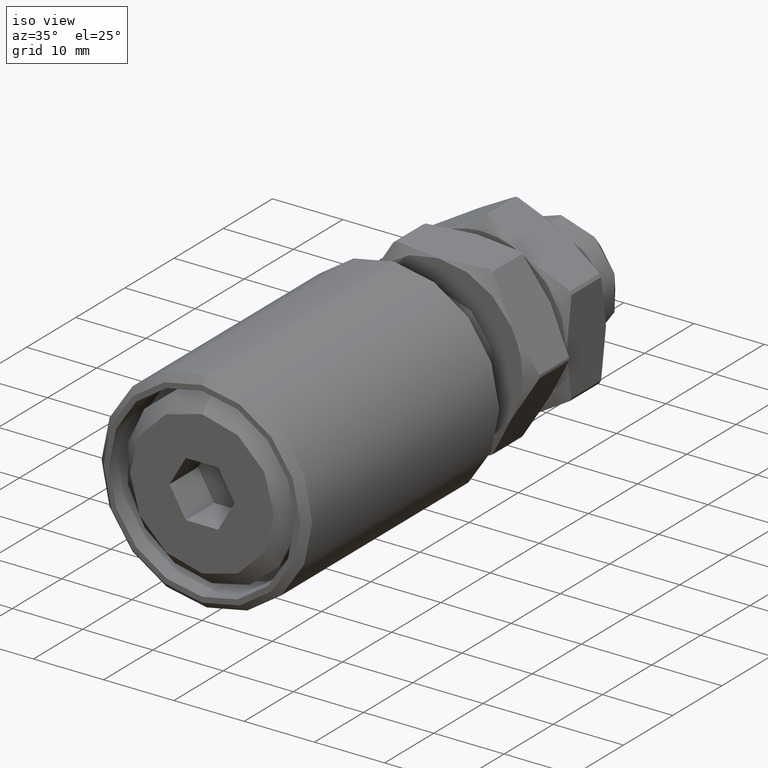
[diagram: clean part render]
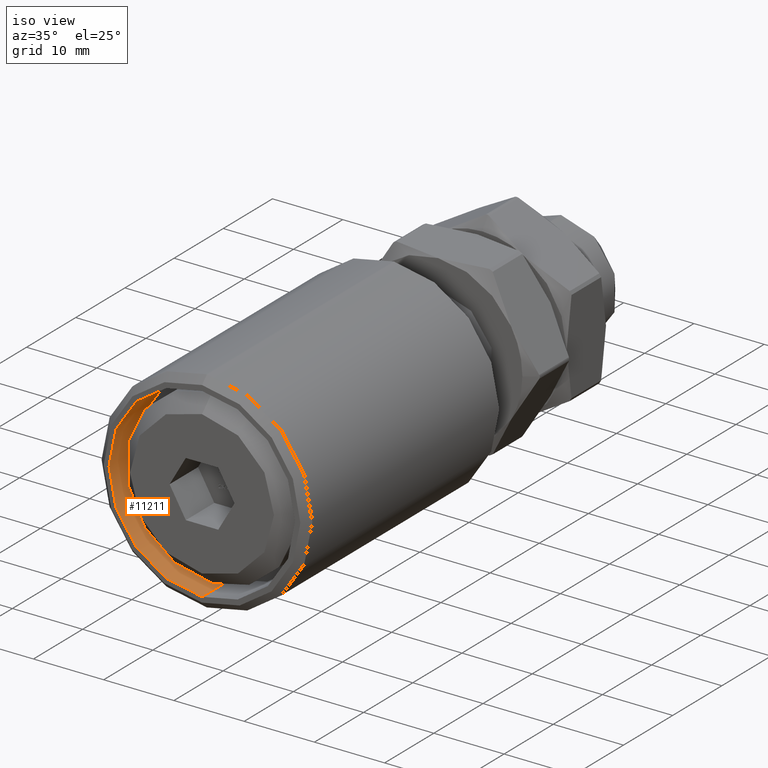
[diagram: same view with one face highlighted and labeled with its STEP entity id]
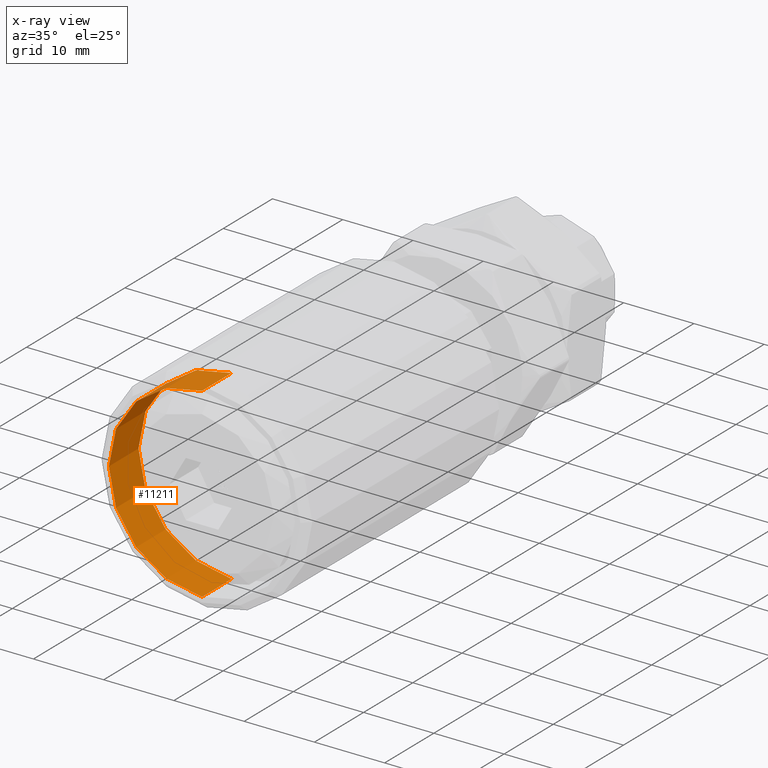
[diagram: x-ray of the same camera — body ghosted, the highlighted face saturated]
A machine part, iso view. The second image highlights one B-rep face of the part: STEP entity #11211.
The next image is the same camera in x-ray: the body ghosted, the highlighted face saturated — about 0% of this face is hidden behind the body in this view.
In plain terms, the highlighted cylindrical surface (partial cylindrical patch) has radius 13.25 mm, axis along (-0, -1, -0).
Its self-contained STEP definition (entity closure, byte-faithful):
#199 = VECTOR ( 'NONE', #1695, 1000.000000000000000 ) ;
#1168 = AXIS2_PLACEMENT_3D ( 'NONE', #3135, #6791, #10564 ) ;
#1228 = CARTESIAN_POINT ( 'NONE',  ( 0.000000000000000000, 0.000000000000000000, -13.25000000000000000 ) ) ;
#1642 = ORIENTED_EDGE ( 'NONE', *, *, #10018, .F. ) ;
#1695 = DIRECTION ( 'NONE',  ( -0.000000000000000000, -1.000000000000000000, -0.000000000000000000 ) ) ;
#2409 = VERTEX_POINT ( 'NONE', #14158 ) ;
#2655 = VERTEX_POINT ( 'NONE', #11034 ) ;
#2872 = AXIS2_PLACEMENT_3D ( 'NONE', #11153, #12856, #6435 ) ;
#3135 = CARTESIAN_POINT ( 'NONE',  ( 0.000000000000000000, 0.000000000000000000, 0.000000000000000000 ) ) ;
#4306 = EDGE_CURVE ( 'NONE', #2655, #2409, #13696, .T. ) ;
#5141 = CARTESIAN_POINT ( 'NONE',  ( 0.000000000000000000, 5.999999999999999112, -13.25000000000000000 ) ) ;
#5521 = ORIENTED_EDGE ( 'NONE', *, *, #4306, .T. ) ;
#6186 = DIRECTION ( 'NONE',  ( -0.000000000000000000, -1.000000000000000000, -0.000000000000000000 ) ) ;
#6219 = CIRCLE ( 'NONE', #2872, 13.25000000000000000 ) ;
#6435 = DIRECTION ( 'NONE',  ( 0.000000000000000000, 0.000000000000000000, -1.000000000000000000 ) ) ;
#6741 = CARTESIAN_POINT ( 'NONE',  ( 0.000000000000000000, 0.000000000000000000, 0.000000000000000000 ) ) ;
#6791 = DIRECTION ( 'NONE',  ( -0.000000000000000000, -1.000000000000000000, -0.000000000000000000 ) ) ;
#9128 = CARTESIAN_POINT ( 'NONE',  ( 1.622657008870242882E-15, 0.000000000000000000, 13.25000000000000000 ) ) ;
#9180 = ORIENTED_EDGE ( 'NONE', *, *, #14504, .F. ) ;
#9380 = CIRCLE ( 'NONE', #13649, 13.25000000000000000 ) ;
#10018 = EDGE_CURVE ( 'NONE', #12418, #14745, #13798, .T. ) ;
#10053 = CYLINDRICAL_SURFACE ( 'NONE', #1168, 13.25000000000000000 ) ;
#10280 = VECTOR ( 'NONE', #6186, 1000.000000000000000 ) ;
#10564 = DIRECTION ( 'NONE',  ( 0.000000000000000000, 0.000000000000000000, -1.000000000000000000 ) ) ;
#11034 = CARTESIAN_POINT ( 'NONE',  ( 1.622657008870242882E-15, 5.999999999999999112, 13.25000000000000000 ) ) ;
#11153 = CARTESIAN_POINT ( 'NONE',  ( 0.000000000000000000, 5.999999999999999112, 0.000000000000000000 ) ) ;
#11211 = ADVANCED_FACE ( 'NONE', ( #13405 ), #10053, .F. ) ;
#12390 = EDGE_LOOP ( 'NONE', ( #9180, #5521, #14838, #1642 ) ) ;
#12418 = VERTEX_POINT ( 'NONE', #5141 ) ;
#12477 = EDGE_CURVE ( 'NONE', #2409, #14745, #9380, .T. ) ;
#12856 = DIRECTION ( 'NONE',  ( -0.000000000000000000, -1.000000000000000000, -0.000000000000000000 ) ) ;
#13405 = FACE_OUTER_BOUND ( 'NONE', #12390, .T. ) ;
#13649 = AXIS2_PLACEMENT_3D ( 'NONE', #6741, #15495, #15388 ) ;
#13696 = LINE ( 'NONE', #9128, #199 ) ;
#13798 = LINE ( 'NONE', #1228, #10280 ) ;
#14158 = CARTESIAN_POINT ( 'NONE',  ( 1.622657008870242882E-15, 0.000000000000000000, 13.25000000000000000 ) ) ;
#14212 = CARTESIAN_POINT ( 'NONE',  ( 0.000000000000000000, 0.000000000000000000, -13.25000000000000000 ) ) ;
#14504 = EDGE_CURVE ( 'NONE', #2655, #12418, #6219, .T. ) ;
#14745 = VERTEX_POINT ( 'NONE', #14212 ) ;
#14838 = ORIENTED_EDGE ( 'NONE', *, *, #12477, .T. ) ;
#15388 = DIRECTION ( 'NONE',  ( 0.000000000000000000, 0.000000000000000000, -1.000000000000000000 ) ) ;
#15495 = DIRECTION ( 'NONE',  ( -0.000000000000000000, -1.000000000000000000, -0.000000000000000000 ) ) ;